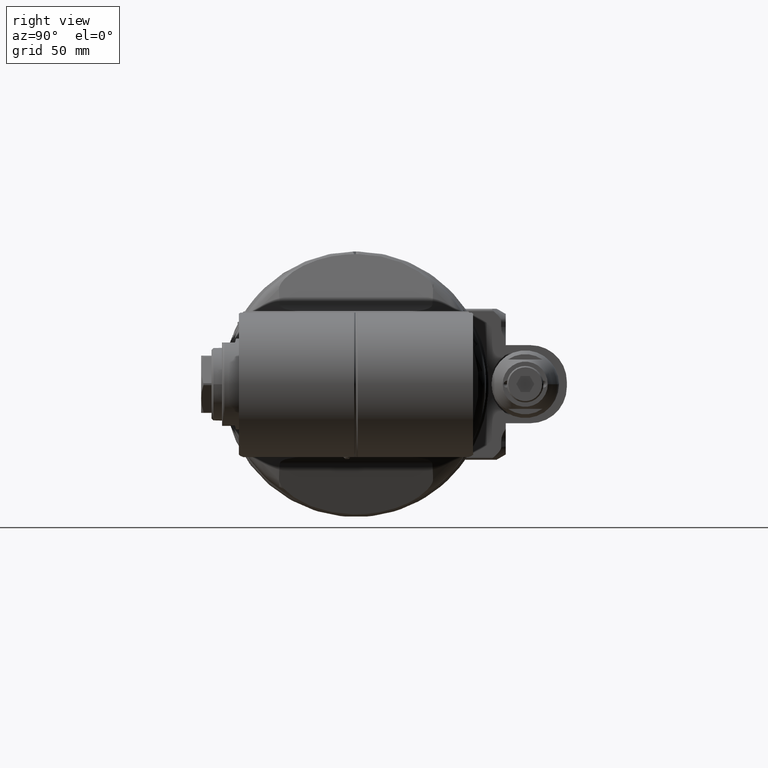
[diagram: clean part render]
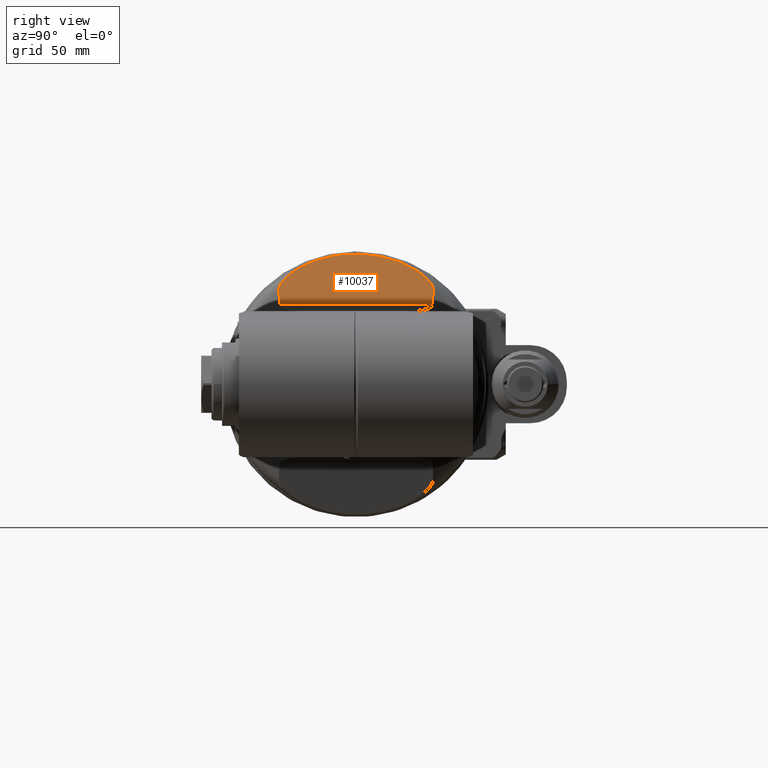
[diagram: same view with one face highlighted and labeled with its STEP entity id]
A machine part, right view. The second image highlights one B-rep face of the part: STEP entity #10037.
In plain terms, the highlighted planar face has unit normal (-0.9397, 0, -0.342).
Its self-contained STEP definition (entity closure, byte-faithful):
#32=ELLIPSE('',#10871,53.2088886237962,50.);
#36=ELLIPSE('',#10880,50.3672702558906,29.5863002294594);
#37=ELLIPSE('',#10893,50.3672702558906,29.5863002294594);
#192=B_SPLINE_CURVE_WITH_KNOTS('',3,(#18764,#18765,#18766,#18767,#18768,
#18769,#18770,#18771,#18772,#18773,#18774,#18775,#18776,#18777,#18778,#18779,
#18780,#18781),.UNSPECIFIED.,.F.,.F.,(4,2,2,2,2,2,2,2,4),(7.09037016510969,
7.87701940297547,8.1777676130302,8.47851582308493,8.80354910515075,9.12858238721657,
9.39474930405345,9.46225514204568,9.47110879821761),.UNSPECIFIED.);
#193=B_SPLINE_CURVE_WITH_KNOTS('',3,(#18782,#18783,#18784,#18785,#18786,
#18787,#18788,#18789,#18790,#18791,#18792,#18793,#18794,#18795,#18796,#18797,
#18798,#18799),.UNSPECIFIED.,.F.,.F.,(4,2,2,2,2,2,2,2,4),(2.93536061385541,
2.94421427000487,3.0117201079971,3.27788702483398,3.6029203068998,3.92795358896562,
4.22870179902035,4.52945000907508,5.31609924694607),.UNSPECIFIED.);
#629=LINE('',#18760,#1269);
#1269=VECTOR('',#12823,58.64425386089);
#1991=PLANE('',#10892);
#2355=FACE_OUTER_BOUND('',#2971,.T.);
#2971=EDGE_LOOP('',(#7723,#7724,#7725,#7726,#7727,#7728));
#4470=VERTEX_POINT('',#18260);
#4471=VERTEX_POINT('',#18262);
#4480=VERTEX_POINT('',#18317);
#4481=VERTEX_POINT('',#18397);
#4510=VERTEX_POINT('',#18680);
#4511=VERTEX_POINT('',#18762);
#5673=EDGE_CURVE('',#4471,#4470,#32,.T.);
#5684=EDGE_CURVE('',#4481,#4480,#36,.T.);
#5719=EDGE_CURVE('',#4510,#4480,#629,.T.);
#5720=EDGE_CURVE('',#4510,#4511,#37,.T.);
#5721=EDGE_CURVE('',#4471,#4511,#192,.T.);
#5722=EDGE_CURVE('',#4481,#4470,#193,.T.);
#7723=ORIENTED_EDGE('',*,*,#5720,.T.);
#7724=ORIENTED_EDGE('',*,*,#5721,.F.);
#7725=ORIENTED_EDGE('',*,*,#5673,.T.);
#7726=ORIENTED_EDGE('',*,*,#5722,.F.);
#7727=ORIENTED_EDGE('',*,*,#5684,.T.);
#7728=ORIENTED_EDGE('',*,*,#5719,.F.);
#10037=ADVANCED_FACE('',(#2355),#1991,.F.);
#10871=AXIS2_PLACEMENT_3D('',#18263,#12771,#12772);
#10880=AXIS2_PLACEMENT_3D('',#18398,#12790,#12791);
#10892=AXIS2_PLACEMENT_3D('',#18761,#12824,#12825);
#10893=AXIS2_PLACEMENT_3D('',#18763,#12826,#12827);
#12771=DIRECTION('center_axis',(0.939692620785897,0.,0.342020143325699));
#12772=DIRECTION('ref_axis',(0.342020143325699,0.,-0.939692620785897));
#12790=DIRECTION('center_axis',(0.939692620785897,0.,0.342020143325699));
#12791=DIRECTION('ref_axis',(-0.342020143325699,1.39349996950756E-15,0.939692620785897));
#12823=DIRECTION('',(5.839985609652E-14,-1.,-1.60660185029E-13));
#12824=DIRECTION('center_axis',(-0.939692620785897,0.,-0.342020143325699));
#12825=DIRECTION('ref_axis',(-0.342020143325699,0.,0.939692620785897));
#12826=DIRECTION('center_axis',(0.939692620785897,0.,0.342020143325699));
#12827=DIRECTION('ref_axis',(-0.342020143325699,1.39349996950756E-15,0.939692620785897));
#18260=CARTESIAN_POINT('',(16.31464863572,-9.363995484958,49.11532946604));
#18262=CARTESIAN_POINT('',(16.31464863572,9.363995485014,49.11532946603));
#18263=CARTESIAN_POINT('Origin',(34.1911666075347,0.,0.));
#18317=CARTESIAN_POINT('',(23.04205971778,-29.32212693045,30.6319194267));
#18397=CARTESIAN_POINT('',(20.8461875545674,-29.5857913848116,36.6650286253525));
#18398=CARTESIAN_POINT('Origin',(20.7451569433892,1.77635683940025E-14,
36.9426079340045));
#18680=CARTESIAN_POINT('',(23.04205971778,29.32212693045,30.6319194267));
#18760=CARTESIAN_POINT('',(23.04205971778,29.32212693045,30.63191942671));
#18761=CARTESIAN_POINT('Origin',(24.00000004808,0.,28.));
#18762=CARTESIAN_POINT('',(20.846187554631,29.5857913848796,36.6650286251221));
#18763=CARTESIAN_POINT('Origin',(20.7451569433892,1.77635683940025E-14,
36.9426079340045));
#18764=CARTESIAN_POINT('Ctrl Pts',(16.3146486357204,9.3639954850139,49.1153294660296));
#18765=CARTESIAN_POINT('Ctrl Pts',(16.5089546643471,12.1641130973679,48.5814780399138));
#18766=CARTESIAN_POINT('Ctrl Pts',(16.7970626489297,14.89268418197,47.7899078579087));
#18767=CARTESIAN_POINT('Ctrl Pts',(17.2779022721392,18.2335890551422,46.4688118507617));
#18768=CARTESIAN_POINT('Ctrl Pts',(17.4371534747882,19.2325943001654,46.0312727674626));
#18769=CARTESIAN_POINT('Ctrl Pts',(17.7890019232365,21.1784209335023,45.0645771002807));
#18770=CARTESIAN_POINT('Ctrl Pts',(17.9817805222086,22.1249619431992,44.5349222526509));
#18771=CARTESIAN_POINT('Ctrl Pts',(18.3765030725583,23.8625497430824,43.4504309586156));
#18772=CARTESIAN_POINT('Ctrl Pts',(18.6191470504405,24.8187856959593,42.7837721084178));
#18773=CARTESIAN_POINT('Ctrl Pts',(19.1522606848867,26.6017151146837,41.3190544357736));
#18774=CARTESIAN_POINT('Ctrl Pts',(19.4425932033076,27.4287590831444,40.5213723972789));
#18775=CARTESIAN_POINT('Ctrl Pts',(19.9758958164078,28.6338312433967,39.05613551005));
#18776=CARTESIAN_POINT('Ctrl Pts',(20.2825600158396,29.2079207962777,38.2135825467563));
#18777=CARTESIAN_POINT('Ctrl Pts',(20.6474740822835,29.5221310747005,37.2109893891602));
#18778=CARTESIAN_POINT('Ctrl Pts',(20.738047373882,29.5748920999617,36.9621413156877));
#18779=CARTESIAN_POINT('Ctrl Pts',(20.8250300714634,29.5852601598776,36.7231583181995));
#18780=CARTESIAN_POINT('Ctrl Pts',(20.8354969470742,29.5858990860273,36.6944008138067));
#18781=CARTESIAN_POINT('Ctrl Pts',(20.846187550095,29.5857914024908,36.6650286234066));
#18782=CARTESIAN_POINT('Ctrl Pts',(20.8461875500136,-29.5857914024916,36.6650286236302));
#18783=CARTESIAN_POINT('Ctrl Pts',(20.8354969470211,-29.5858990860241,36.6944008139527));
#18784=CARTESIAN_POINT('Ctrl Pts',(20.8250300714378,-29.5852601598746,36.7231583182698));
#18785=CARTESIAN_POINT('Ctrl Pts',(20.738047373882,-29.5748920999617,36.9621413156877));
#18786=CARTESIAN_POINT('Ctrl Pts',(20.6474740822835,-29.5221310747005,37.2109893891602));
#18787=CARTESIAN_POINT('Ctrl Pts',(20.2825600158396,-29.2079207962777,38.2135825467563));
#18788=CARTESIAN_POINT('Ctrl Pts',(19.9758958164078,-28.6338312433967,39.05613551005));
#18789=CARTESIAN_POINT('Ctrl Pts',(19.4425932033076,-27.4287590831444,40.5213723972789));
#18790=CARTESIAN_POINT('Ctrl Pts',(19.1522606848867,-26.6017151146837,41.3190544357736));
#18791=CARTESIAN_POINT('Ctrl Pts',(18.6191470504405,-24.8187856959593,42.7837721084178));
#18792=CARTESIAN_POINT('Ctrl Pts',(18.3765030725583,-23.8625497430824,43.4504309586156));
#18793=CARTESIAN_POINT('Ctrl Pts',(17.9817805222086,-22.1249619431991,44.5349222526509));
#18794=CARTESIAN_POINT('Ctrl Pts',(17.7890019232365,-21.1784209335023,45.0645771002807));
#18795=CARTESIAN_POINT('Ctrl Pts',(17.4371534747882,-19.2325943001654,46.0312727674626));
#18796=CARTESIAN_POINT('Ctrl Pts',(17.2779022721392,-18.2335890551422,46.4688118507617));
#18797=CARTESIAN_POINT('Ctrl Pts',(16.7970626489274,-14.892684181954,47.789907857915));
#18798=CARTESIAN_POINT('Ctrl Pts',(16.5089546643434,-12.1641130973317,48.5814780399241));
#18799=CARTESIAN_POINT('Ctrl Pts',(16.3146486357165,-9.36399548495828,49.1153294660402));